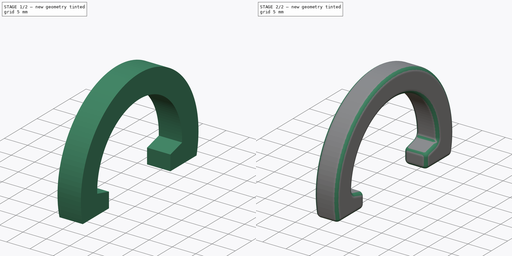
[diagram: build sequence overview — one tinted view per stage of 2, left to right]
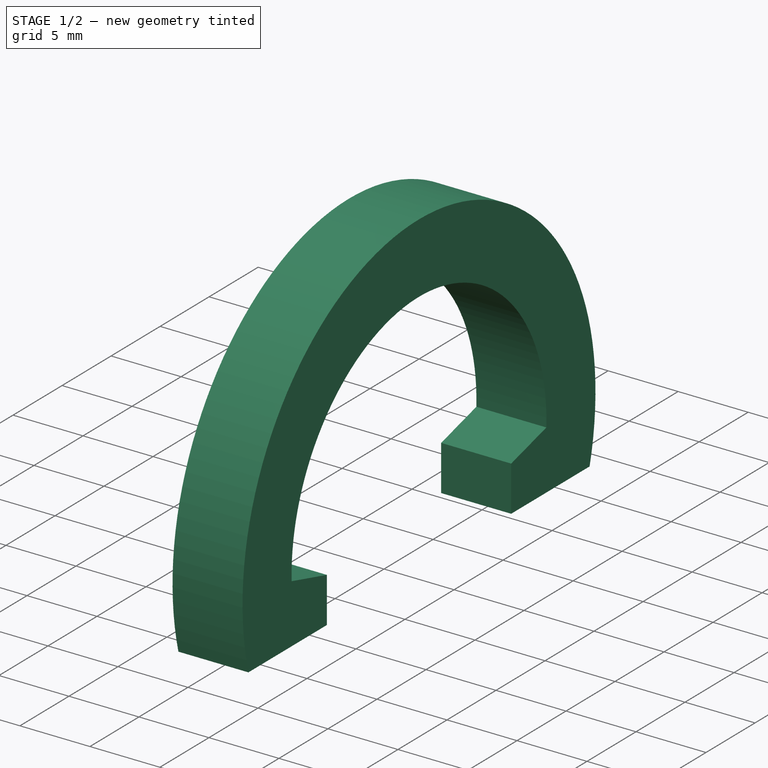
[diagram: stage 1 of 2 — iso view after this stage's code; geometry added in this stage tinted green]
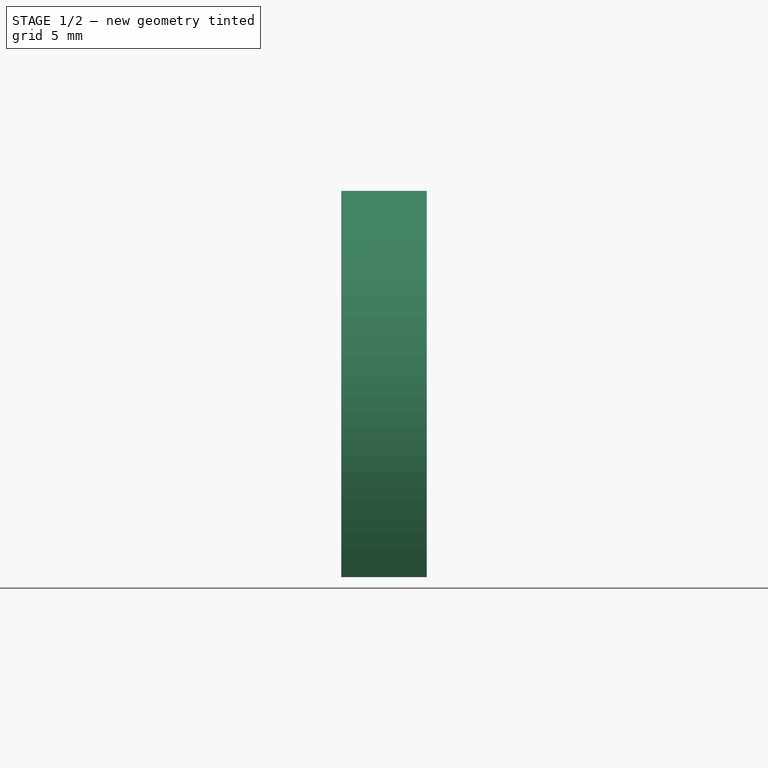
[diagram: stage 1 of 2 — front view after this stage's code; geometry added in this stage tinted green]
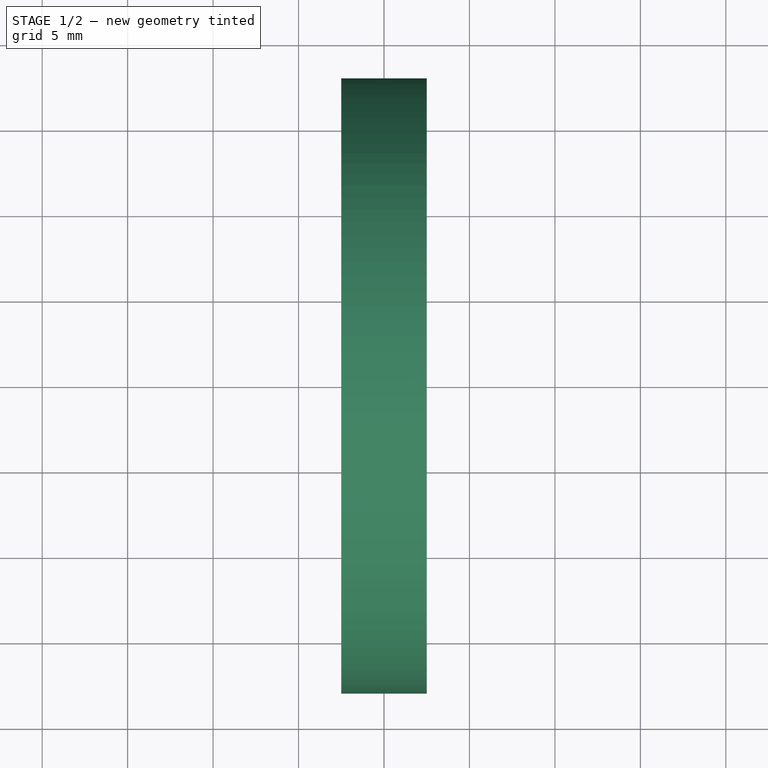
[diagram: stage 1 of 2 — top view after this stage's code; geometry added in this stage tinted green]
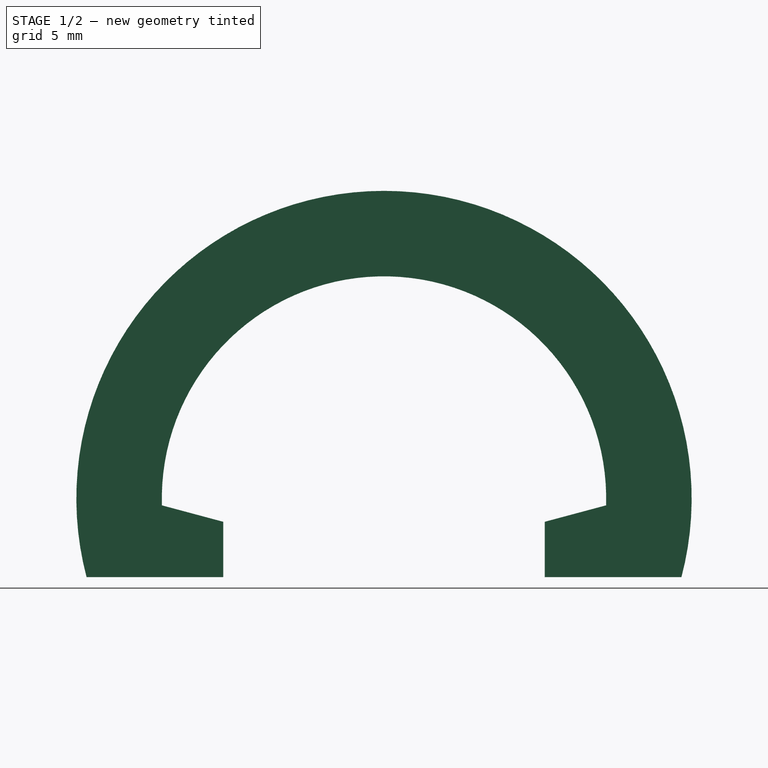
[diagram: stage 1 of 2 — right view after this stage's code; geometry added in this stage tinted green]
FCSTD DOCUMENT  (FreeCAD 1.0R38641 +468 (Git))
Label: probe-holder-shaft-02-clamp
License: All rights reserved
LicenseURL: http://en.wikipedia.org/wiki/All_rights_reserved
objects: Sketcher::SketchObject×1, PartDesign::Pad×1, PartDesign::Fillet×1, PartDesign::Body×1
note: 9 computed .brp shape members not serialized (recipe doc carries the construction recipe); baked Part::Feature solids carry a one-line shape summary decoded from their .brp

FEATURE [Sketcher::SketchObject] Sketch
  ArcFitTolerance = 1e-06
  AttachmentSupport = -> [YZ_Plane]
  FullyConstrained = true
  MakeInternals = false
  MapMode = 5
  Placement = pos=(0,0,0) rot=(0.57735,0.57735,0.57735;2.0944rad)
  sketch-geometry (8):
    g0: ArcOfCircle CenterX=0 CenterY=0 CenterZ=0 NormalX=0 NormalY=0 NormalZ=1 AngleXU=0 Radius=13 StartAngle=6.25241 EndAngle=9.45555
    g1: LineSegment StartX=-12.9938 StartY=-0.4 StartZ=0 EndX=-9.4023 EndY=-1.36235 EndZ=0
    g2: LineSegment StartX=-9.4023 StartY=-1.36235 StartZ=0 EndX=-9.4023 EndY=-4.6 EndZ=0
    g3: LineSegment StartX=-9.4023 StartY=-4.6 StartZ=0 EndX=-17.4023 EndY=-4.6 EndZ=0
    g4: ArcOfCircle CenterX=0 CenterY=0 CenterZ=0 NormalX=0 NormalY=0 NormalZ=1 AngleXU=0 Radius=18 StartAngle=6.02476 EndAngle=9.6832
    g5: LineSegment StartX=17.4023 StartY=-4.6 StartZ=0 EndX=9.4023 EndY=-4.6 EndZ=0
    g6: LineSegment StartX=9.4023 StartY=-4.6 StartZ=0 EndX=9.4023 EndY=-1.36235 EndZ=0
    g7: LineSegment StartX=9.4023 StartY=-1.36235 StartZ=0 EndX=12.9938 EndY=-0.4 EndZ=0
  constraints (24):
    c: Radius(g0) = 13
    c: Coincident(g0,g-1)
    c: Coincident(g1,g2)
    c: Vertical(g2)
    c: Coincident(g2,g3)
    c: Horizontal(g3)
    c: Angle(g1,g-1) = 0.261799
    c: DistanceY(g2) = -4.6
    c: DistanceY(g0) = -0.4
    c: Coincident(g1,g0)
    c: Horizontal(g0,g0)
    c: Radius(g4) = 18
    c: Coincident(g4,g0)
    c: Coincident(g3,g4)
    c: Horizontal(g3,g4)
    c: Coincident(g5,g4)
    c: Horizontal(g5)
    c: Coincident(g6,g5)
    c: Vertical(g6)
    c: Coincident(g7,g6)
    c: Coincident(g7,g0)
    c: Angle(g-1,g7) = 0.261799
    c: DistanceX(g3,g3) = 8
    c: DistanceX(g5,g5) = 8
FEATURE [PartDesign::Pad] Pad
  Direction = (1,0,0)
  Length = 5
  Length2 = 10
  Midplane = true
  Placement = pos=(0,0,0) rot=(1,1,1;2.0944rad)
  Profile = -> Sketch
  ReferenceAxis = -> Sketch [N_Axis]
  Refine = true
  Suppressed = false
  Type = 0
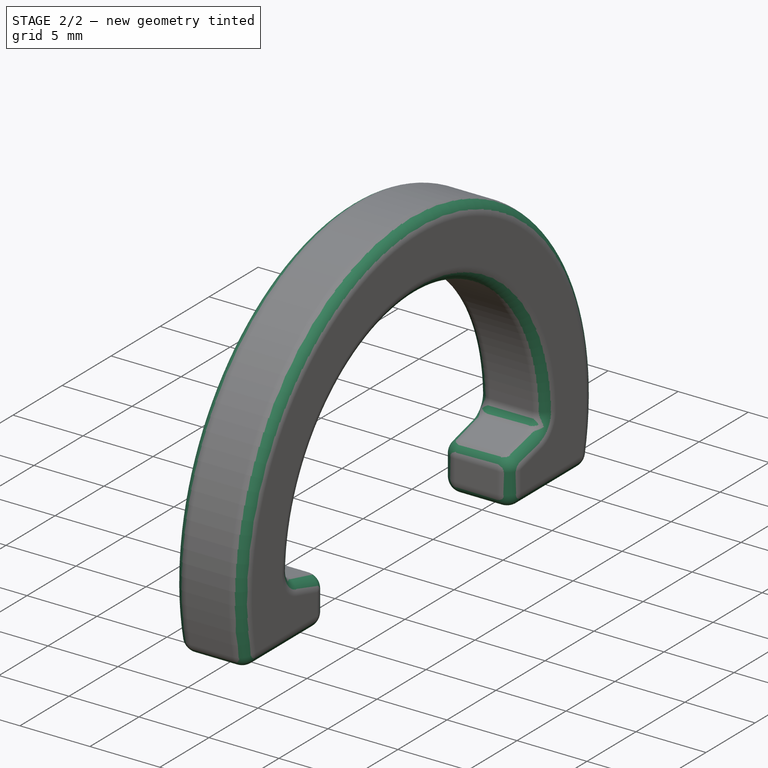
[diagram: stage 2 of 2 — iso view after this stage's code; geometry added in this stage tinted green]
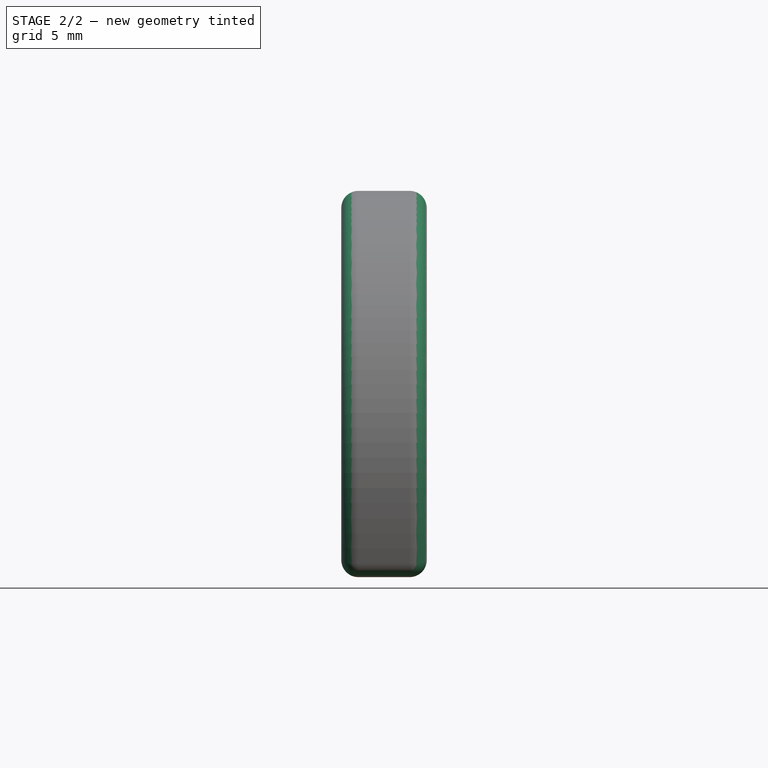
[diagram: stage 2 of 2 — front view after this stage's code; geometry added in this stage tinted green]
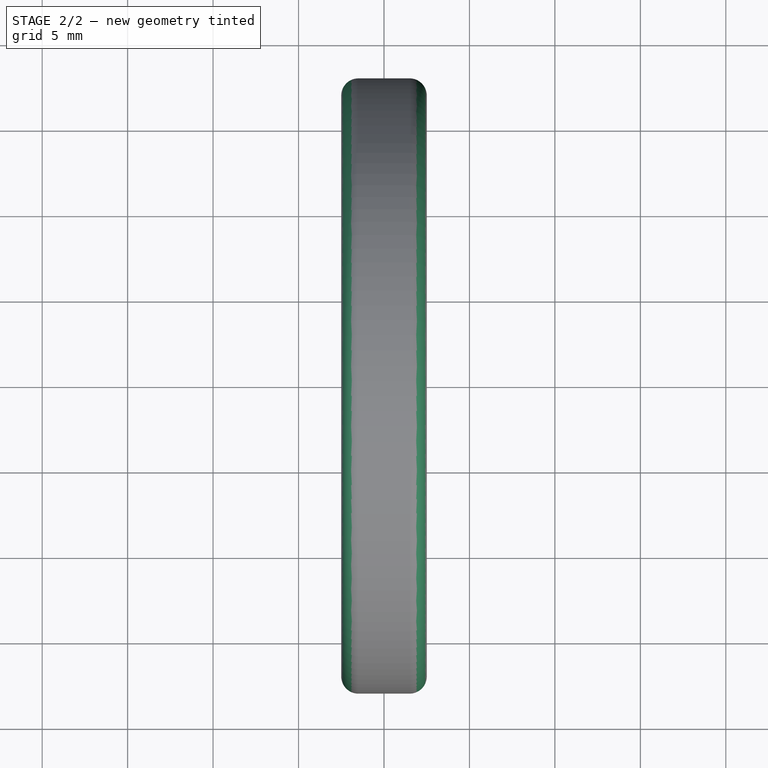
[diagram: stage 2 of 2 — top view after this stage's code; geometry added in this stage tinted green]
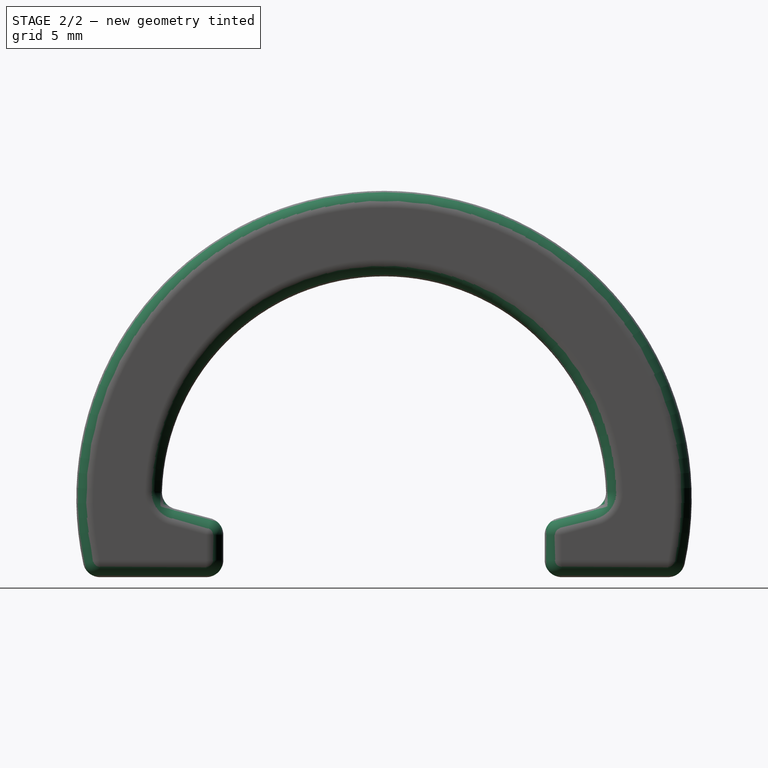
[diagram: stage 2 of 2 — right view after this stage's code; geometry added in this stage tinted green]
FEATURE [PartDesign::Fillet] Fillet
  Base = -> Pad [Edge5,Edge9,Edge3,Edge15,Edge23,Edge21,Edge6,Edge12,Edge18,Edge16,Edge14,Edge8,Edge10,Edge4,Edge2,Edge1,Edge20,Edge17,Edge22,Edge24,Edge7,Edge13,Edge19,Edge11]
  BaseFeature = -> Pad
  Placement = pos=(0,0,0) rot=(1,1,1;2.0944rad)
  Radius = 1
  Refine = true
  SupportTransform = false
  Suppressed = false
  UseAllEdges = false
FEATURE [PartDesign::Body] Body
  AllowCompound = false
  Group = -> [Sketch,Pad,Fillet]
  Origin = -> Origin
  Tip = -> Fillet
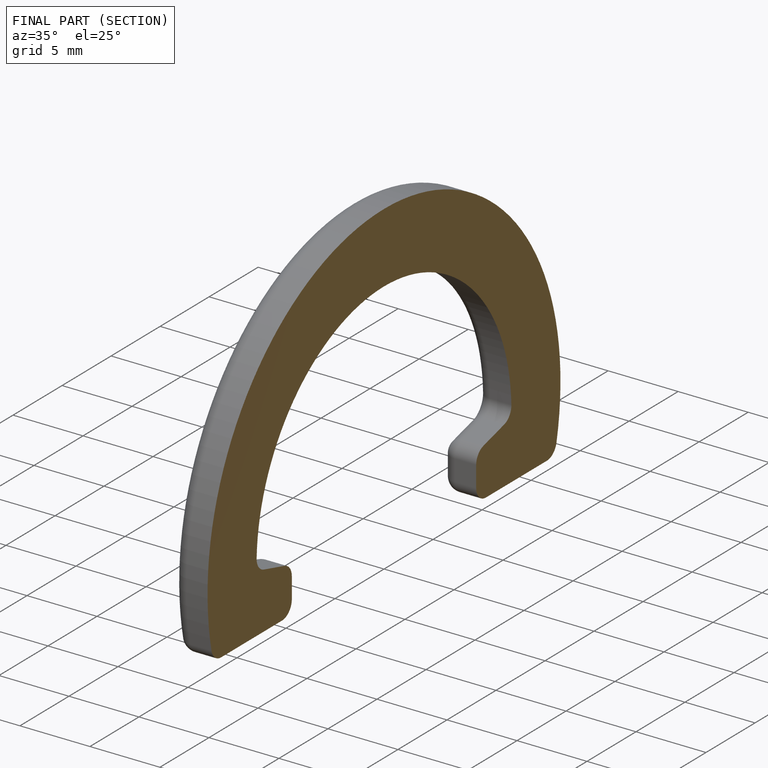
[diagram: finished part — half-section view (interior)]
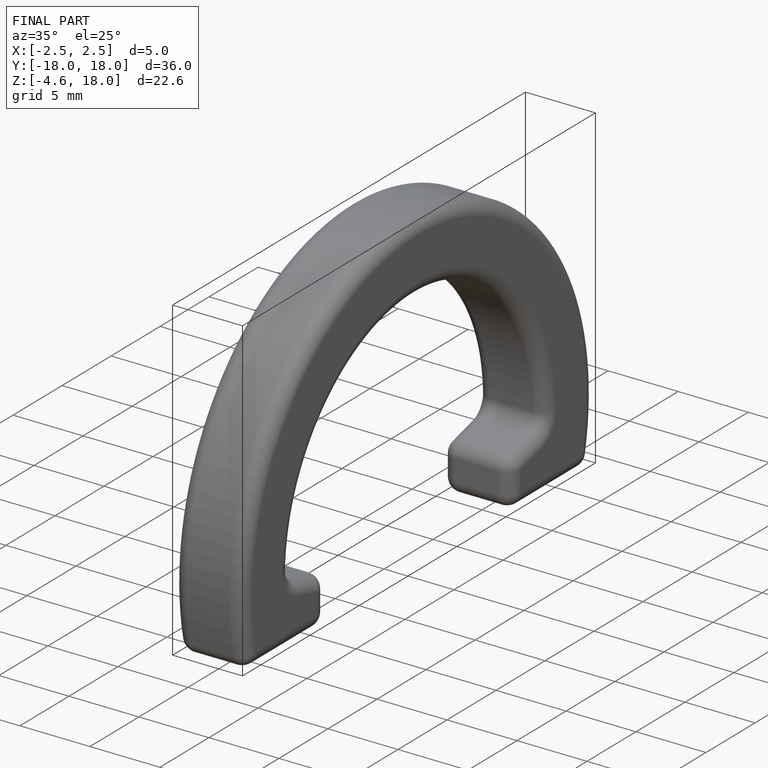
[diagram: finished part — iso view with bounding-box wireframe]
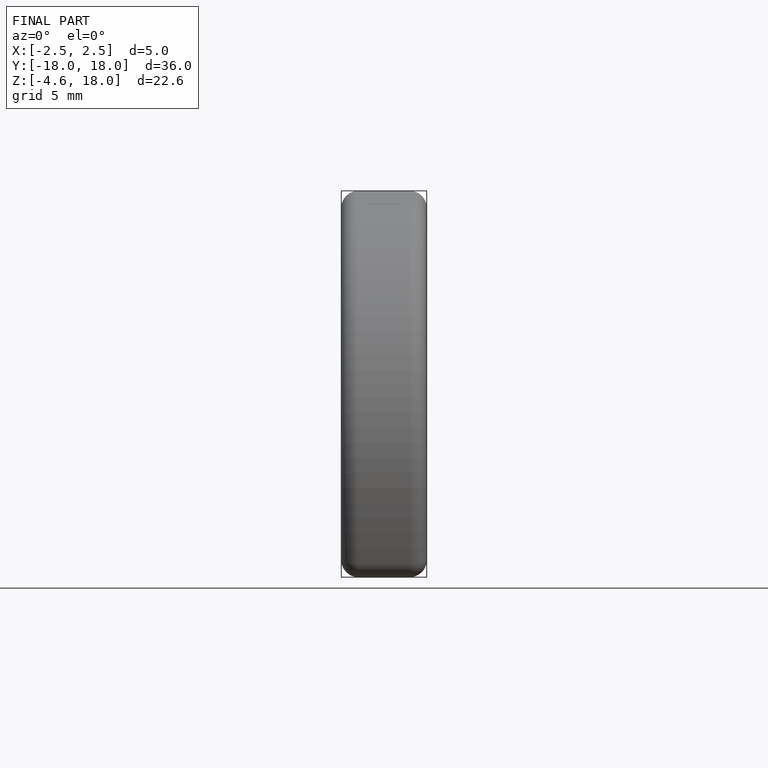
[diagram: finished part — front view with bounding-box wireframe]
